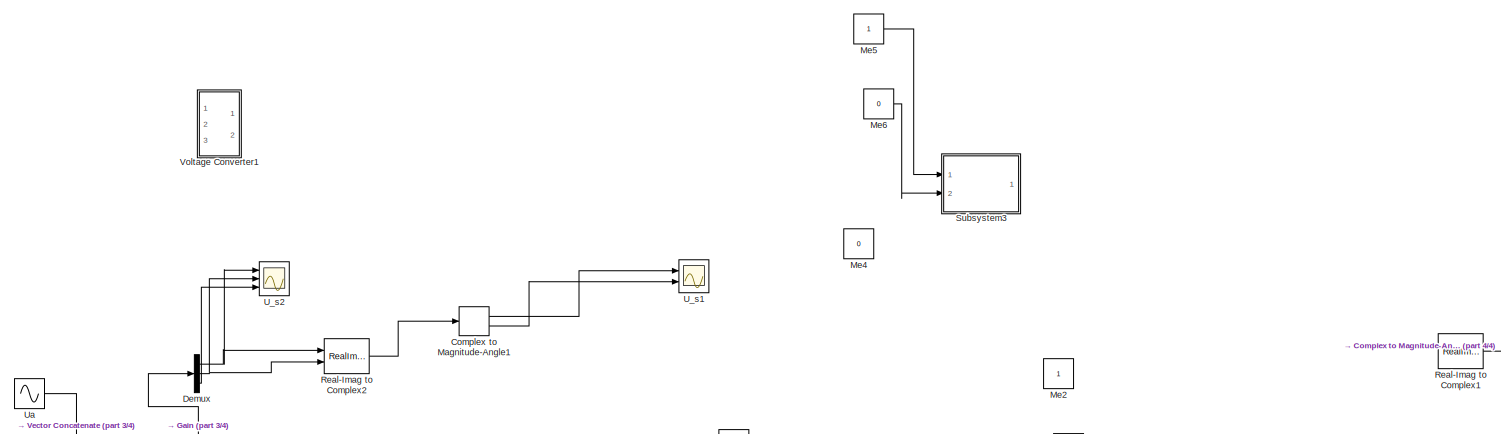
[diagram: root canvas - part 1/4, full width, top band]
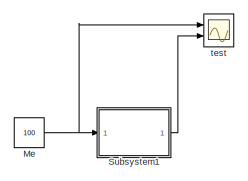
[diagram: root canvas - part 2/4, middle right region]
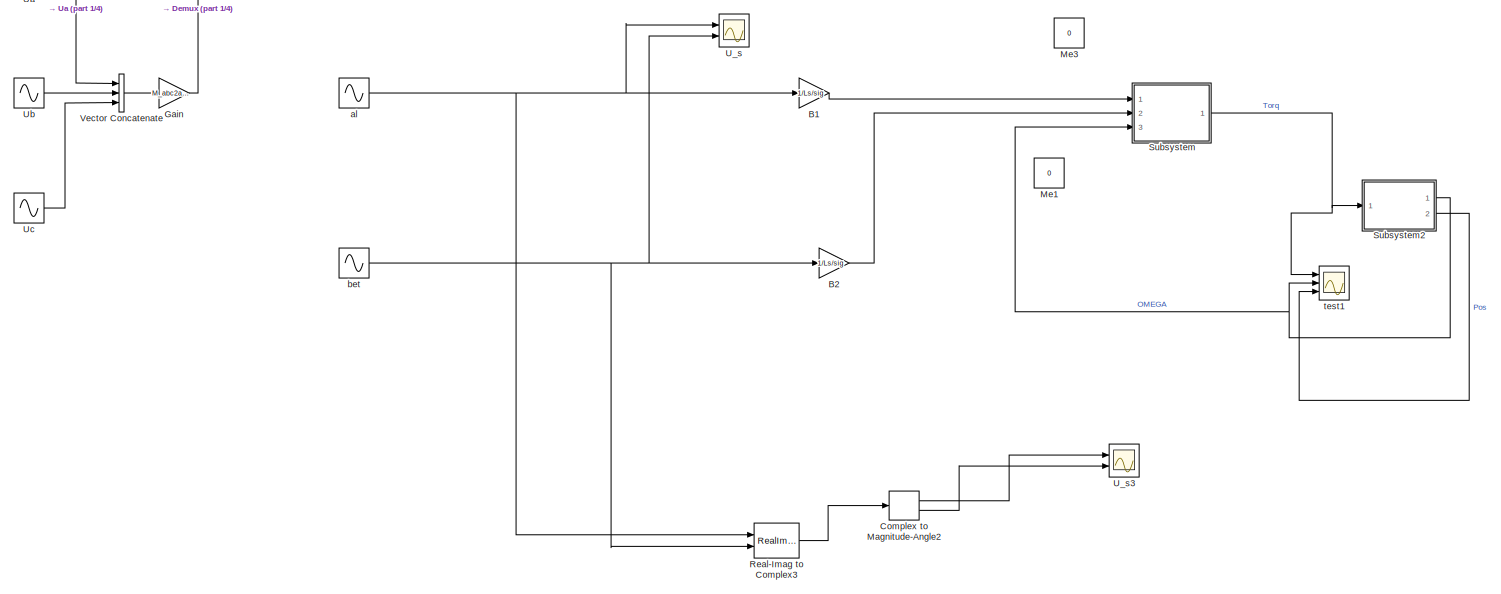
[diagram: root canvas - part 3/4, full width, bottom band]
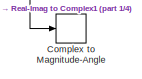
[diagram: root canvas - part 4/4, middle right region]
MODEL slx_2a4fa56e10c3
KIND model
CONFIG AbsTol = auto
CONFIG FixedStep = 0.0001
CONFIG MaxStep = auto
CONFIG MinStep = auto
CONFIG RelTol = 1e-3
CONFIG SampleTimeConstraint = Unconstrained
CONFIG Solver = FixedStepAuto
CONFIG SolverMode = Auto
CONFIG SolverName = FixedStepAuto
CONFIG StartTime = 0.0
CONFIG StopTime = 5
BLOCK [Gain] B1
  Gain = 1/Ls/sig
  Multiplication = Matrix(K*u)
  OutDataTypeStr = Inherit: Inherit via internal rule
  ParamDataTypeStr = Inherit: Inherit via internal rule
  SaturateOnIntegerOverflow = off
BLOCK [Gain] B2
  Gain = 1/Ls/sig
  Multiplication = Matrix(K*u)
  OutDataTypeStr = Inherit: Inherit via internal rule
  ParamDataTypeStr = Inherit: Inherit via internal rule
  SaturateOnIntegerOverflow = off
BLOCK [ComplexToMagnitudeAngle] Complex to Magnitude-Angle
  Ports = [1, 2]
BLOCK [ComplexToMagnitudeAngle] Complex to Magnitude-Angle1
  Ports = [1, 2]
BLOCK [ComplexToMagnitudeAngle] Complex to Magnitude-Angle2
  Ports = [1, 2]
BLOCK [Demux] Demux
  DisplayOption = bar
  Outputs = 3
  Ports = [1, 3]
BLOCK [Gain] Gain
  Gain = M_abc2ab0
  Multiplication = Matrix(K*u)
  OutDataTypeStr = Inherit: Inherit via internal rule
  ParamDataTypeStr = Inherit: Inherit via internal rule
  SaturateOnIntegerOverflow = off
BLOCK [Constant] Me
  Value = 100
BLOCK [Constant] Me1
  Value = 0
BLOCK [Constant] Me2
BLOCK [Constant] Me3
  Value = 0
BLOCK [Constant] Me4
  Value = 0
BLOCK [Constant] Me5
BLOCK [Constant] Me6
  Value = 0
BLOCK [RealImagToComplex] Real-Imag to Complex1
  Ports = [2, 1]
BLOCK [RealImagToComplex] Real-Imag to Complex2
  Ports = [2, 1]
BLOCK [RealImagToComplex] Real-Imag to Complex3
  Ports = [2, 1]
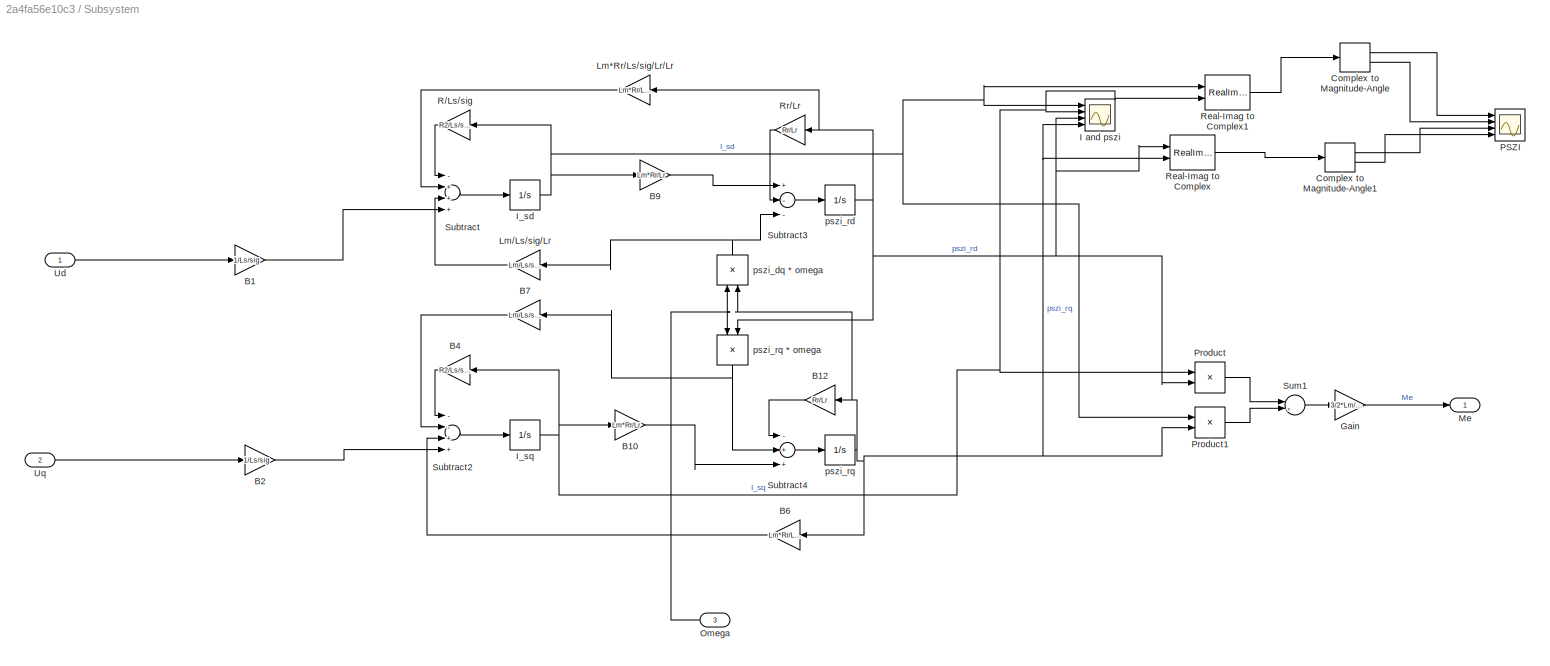
BLOCK [SubSystem] Subsystem
  Ports = [3, 1]
  RequestExecContextInheritance = off
  Variant = off
BLOCK [Gain] Subsystem/B1
  Gain = 1/Ls/sig
  Multiplication = Matrix(K*u)
  OutDataTypeStr = Inherit: Inherit via internal rule
  ParamDataTypeStr = Inherit: Inherit via internal rule
  SaturateOnIntegerOverflow = off
BLOCK [Gain] Subsystem/B10
  Gain = Lm*Rr/Lr
  Multiplication = Matrix(K*u)
  OutDataTypeStr = Inherit: Inherit via internal rule
  ParamDataTypeStr = Inherit: Inherit via internal rule
  SaturateOnIntegerOverflow = off
BLOCK [Gain] Subsystem/B12
  Gain = Rr/Lr
  Multiplication = Matrix(K*u)
  OutDataTypeStr = Inherit: Inherit via internal rule
  ParamDataTypeStr = Inherit: Inherit via internal rule
  SaturateOnIntegerOverflow = off
BLOCK [Gain] Subsystem/B2
  Gain = 1/Ls/sig
  Multiplication = Matrix(K*u)
  OutDataTypeStr = Inherit: Inherit via internal rule
  ParamDataTypeStr = Inherit: Inherit via internal rule
  SaturateOnIntegerOverflow = off
BLOCK [Gain] Subsystem/B4
  Gain = R2/Ls/sig
  Multiplication = Matrix(K*u)
  OutDataTypeStr = Inherit: Inherit via internal rule
  ParamDataTypeStr = Inherit: Inherit via internal rule
  SaturateOnIntegerOverflow = off
BLOCK [Gain] Subsystem/B6
  Gain = Lm*Rr/Ls/sig/Lr/Lr
  Multiplication = Matrix(K*u)
  OutDataTypeStr = Inherit: Inherit via internal rule
  ParamDataTypeStr = Inherit: Inherit via internal rule
  SaturateOnIntegerOverflow = off
BLOCK [Gain] Subsystem/B7
  Gain = Lm/Ls/sig/Lr
  Multiplication = Matrix(K*u)
  OutDataTypeStr = Inherit: Inherit via internal rule
  ParamDataTypeStr = Inherit: Inherit via internal rule
  SaturateOnIntegerOverflow = off
BLOCK [Gain] Subsystem/B9
  Gain = Lm*Rr/Lr
  Multiplication = Matrix(K*u)
  OutDataTypeStr = Inherit: Inherit via internal rule
  ParamDataTypeStr = Inherit: Inherit via internal rule
  SaturateOnIntegerOverflow = off
BLOCK [ComplexToMagnitudeAngle] Subsystem/Complex to Magnitude-Angle
  Ports = [1, 2]
BLOCK [ComplexToMagnitudeAngle] Subsystem/Complex to Magnitude-Angle1
  Ports = [1, 2]
BLOCK [Gain] Subsystem/Gain
  Gain = 3/2*Lm/Lr
  OutDataTypeStr = Inherit: Inherit via internal rule
  ParamDataTypeStr = Inherit: Inherit via internal rule
  SaturateOnIntegerOverflow = off
BLOCK [Scope] Subsystem/I and pszi
  NumInputPorts = 4
  Ports = [4]
  ScopeSpecificationString = Simulink.scopes.TimeScopeBlockCfg('CurrentConfiguration', extmgr.ConfigurationSet(extmgr.Configuration('Core','General UI',true),extmgr.Configuration('Core','Source UI',true),extmgr.Configuration('Sources','WiredSimulink',true),extmgr.Configuration('Visuals','Time Domain',true,'SerializedDisplays',{struct('MinYLimReal','-96.38058','MaxYLimReal','113.50421','YLabelReal','','MinYLimMag','0.00000','M...<+1466ch>
BLOCK [Integrator] Subsystem/I_sd
  Ports = [1, 1]
BLOCK [Integrator] Subsystem/I_sq
  Ports = [1, 1]
BLOCK [Gain] Subsystem/Lm*Rr//Ls//sig//Lr//Lr
  Gain = Lm*Rr/Ls/sig/Lr/Lr
  Multiplication = Matrix(K*u)
  OutDataTypeStr = Inherit: Inherit via internal rule
  ParamDataTypeStr = Inherit: Inherit via internal rule
  SaturateOnIntegerOverflow = off
BLOCK [Gain] Subsystem/Lm//Ls//sig//Lr
  Gain = Lm/Ls/sig/Lr
  Multiplication = Matrix(K*u)
  OutDataTypeStr = Inherit: Inherit via internal rule
  ParamDataTypeStr = Inherit: Inherit via internal rule
  SaturateOnIntegerOverflow = off
BLOCK [Outport] Subsystem/Me
  IconDisplay = Port number
BLOCK [Inport] Subsystem/Omega
  IconDisplay = Port number
  Port = 3
BLOCK [Scope] Subsystem/PSZI
  NumInputPorts = 4
  Ports = [4]
  ScopeSpecificationString = Simulink.scopes.TimeScopeBlockCfg('CurrentConfiguration', extmgr.ConfigurationSet(extmgr.Configuration('Core','General UI',true),extmgr.Configuration('Core','Source UI',true),extmgr.Configuration('Sources','WiredSimulink',true,'DataLoggingVariableName','ScopeData2'),extmgr.Configuration('Visuals','Time Domain',true,'SerializedDisplays',{struct('MinYLimReal','-15.09969','MaxYLimReal','104.48314','Y...<+1622ch>
BLOCK [Product] Subsystem/Product
  InputSameDT = off
  OutDataTypeStr = Inherit: Inherit via internal rule
  Ports = [2, 1]
  RndMeth = Floor
  SaturateOnIntegerOverflow = off
BLOCK [Product] Subsystem/Product1
  InputSameDT = off
  OutDataTypeStr = Inherit: Inherit via internal rule
  Ports = [2, 1]
  RndMeth = Floor
  SaturateOnIntegerOverflow = off
BLOCK [Gain] Subsystem/R//Ls//sig
  Gain = R2/Ls/sig
  Multiplication = Matrix(K*u)
  OutDataTypeStr = Inherit: Inherit via internal rule
  ParamDataTypeStr = Inherit: Inherit via internal rule
  SaturateOnIntegerOverflow = off
BLOCK [RealImagToComplex] Subsystem/Real-Imag to Complex
  Ports = [2, 1]
BLOCK [RealImagToComplex] Subsystem/Real-Imag to Complex1
  Ports = [2, 1]
BLOCK [Gain] Subsystem/Rr//Lr
  Gain = Rr/Lr
  Multiplication = Matrix(K*u)
  OutDataTypeStr = Inherit: Inherit via internal rule
  ParamDataTypeStr = Inherit: Inherit via internal rule
  SaturateOnIntegerOverflow = off
BLOCK [Sum] Subsystem/Subtract
  InputSameDT = off
  Inputs = -+++
  OutDataTypeStr = Inherit: Inherit via internal rule
  Ports = [4, 1]
  SaturateOnIntegerOverflow = off
BLOCK [Sum] Subsystem/Subtract2
  InputSameDT = off
  Inputs = --++
  OutDataTypeStr = Inherit: Inherit via internal rule
  Ports = [4, 1]
  SaturateOnIntegerOverflow = off
BLOCK [Sum] Subsystem/Subtract3
  InputSameDT = off
  Inputs = +--
  OutDataTypeStr = Inherit: Inherit via internal rule
  Ports = [3, 1]
  SaturateOnIntegerOverflow = off
BLOCK [Sum] Subsystem/Subtract4
  InputSameDT = off
  Inputs = -++
  OutDataTypeStr = Inherit: Inherit via internal rule
  Ports = [3, 1]
  SaturateOnIntegerOverflow = off
BLOCK [Sum] Subsystem/Sum1
  IconShape = round
  InputSameDT = off
  Inputs = |+-|
  OutDataTypeStr = Inherit: Inherit via internal rule
  Ports = [2, 1]
  SaturateOnIntegerOverflow = off
BLOCK [Inport] Subsystem/Ud
  IconDisplay = Port number
BLOCK [Inport] Subsystem/Uq
  IconDisplay = Port number
  Port = 2
BLOCK [Product] Subsystem/pszi_dq * omega
  InputSameDT = off
  OutDataTypeStr = Inherit: Inherit via internal rule
  Ports = [2, 1]
  RndMeth = Floor
  SaturateOnIntegerOverflow = off
BLOCK [Integrator] Subsystem/pszi_rd
  Ports = [1, 1]
BLOCK [Integrator] Subsystem/pszi_rq 
  Ports = [1, 1]
BLOCK [Product] Subsystem/pszi_rq * omega
  InputSameDT = off
  OutDataTypeStr = Inherit: Inherit via internal rule
  Ports = [2, 1]
  RndMeth = Floor
  SaturateOnIntegerOverflow = off
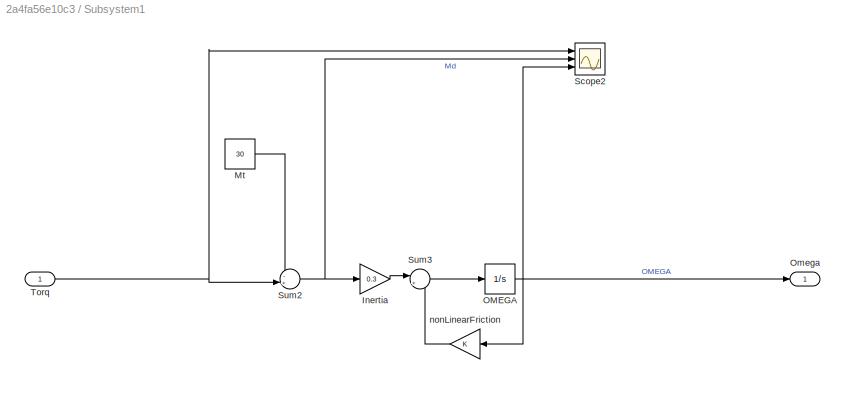
BLOCK [SubSystem] Subsystem1
  Ports = [1, 1]
  RequestExecContextInheritance = off
  Variant = off
BLOCK [Gain] Subsystem1/Inertia
  Gain = 0.3
  OutDataTypeStr = Inherit: Inherit via internal rule
  ParamDataTypeStr = Inherit: Inherit via internal rule
  SaturateOnIntegerOverflow = off
BLOCK [Constant] Subsystem1/Mt
  Value = 30
BLOCK [Integrator] Subsystem1/OMEGA
  Ports = [1, 1]
BLOCK [Outport] Subsystem1/Omega
  IconDisplay = Port number
BLOCK [Scope] Subsystem1/Scope2
  NumInputPorts = 3
  Ports = [3]
  ScopeSpecificationString = Simulink.scopes.TimeScopeBlockCfg('CurrentConfiguration', extmgr.ConfigurationSet(extmgr.Configuration('Core','General UI',true),extmgr.Configuration('Core','Source UI',true),extmgr.Configuration('Sources','WiredSimulink',true,'DataLoggingVariableName','ScopeData2'),extmgr.Configuration('Visuals','Time Domain',true,'SerializedDisplays',{struct('MinYLimReal','90.00000','MaxYLimReal','110.00000','YL...<+2795ch>
BLOCK [Sum] Subsystem1/Sum2
  IconShape = round
  InputSameDT = off
  Inputs = -+|
  OutDataTypeStr = Inherit: Inherit via internal rule
  Ports = [2, 1]
  SaturateOnIntegerOverflow = off
BLOCK [Sum] Subsystem1/Sum3
  IconShape = round
  InputSameDT = off
  Inputs = |+-
  OutDataTypeStr = Inherit: Inherit via internal rule
  Ports = [2, 1]
  SaturateOnIntegerOverflow = off
BLOCK [Inport] Subsystem1/Torq 
  IconDisplay = Port number
BLOCK [Gain] Subsystem1/nonLinearFriction
  OutDataTypeStr = Inherit: Inherit via internal rule
  ParamDataTypeStr = Inherit: Inherit via internal rule
  SaturateOnIntegerOverflow = off
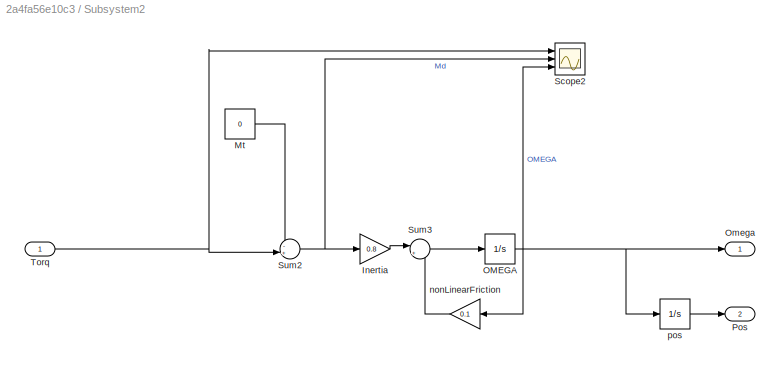
BLOCK [SubSystem] Subsystem2
  Ports = [1, 2]
  RequestExecContextInheritance = off
  Variant = off
BLOCK [Gain] Subsystem2/Inertia
  Gain = 0.8
  OutDataTypeStr = Inherit: Inherit via internal rule
  ParamDataTypeStr = Inherit: Inherit via internal rule
  SaturateOnIntegerOverflow = off
BLOCK [Constant] Subsystem2/Mt
  Value = 0
BLOCK [Integrator] Subsystem2/OMEGA
  Ports = [1, 1]
BLOCK [Outport] Subsystem2/Omega
  IconDisplay = Port number
BLOCK [Outport] Subsystem2/Pos
  IconDisplay = Port number
  Port = 2
BLOCK [Scope] Subsystem2/Scope2
  NumInputPorts = 3
  Ports = [3]
  ScopeSpecificationString = Simulink.scopes.TimeScopeBlockCfg('CurrentConfiguration', extmgr.ConfigurationSet(extmgr.Configuration('Core','General UI',true),extmgr.Configuration('Core','Source UI',true),extmgr.Configuration('Sources','WiredSimulink',true,'DataLoggingVariableName','ScopeData2'),extmgr.Configuration('Visuals','Time Domain',true,'SerializedDisplays',{struct('MinYLimReal','90.00000','MaxYLimReal','110.00000','YL...<+2799ch>
BLOCK [Sum] Subsystem2/Sum2
  IconShape = round
  InputSameDT = off
  Inputs = -+|
  OutDataTypeStr = Inherit: Inherit via internal rule
  Ports = [2, 1]
  SaturateOnIntegerOverflow = off
BLOCK [Sum] Subsystem2/Sum3
  IconShape = round
  InputSameDT = off
  Inputs = |+-
  OutDataTypeStr = Inherit: Inherit via internal rule
  Ports = [2, 1]
  SaturateOnIntegerOverflow = off
BLOCK [Inport] Subsystem2/Torq 
  IconDisplay = Port number
BLOCK [Gain] Subsystem2/nonLinearFriction
  Gain = 0.1
  OutDataTypeStr = Inherit: Inherit via internal rule
  ParamDataTypeStr = Inherit: Inherit via internal rule
  SaturateOnIntegerOverflow = off
BLOCK [Integrator] Subsystem2/pos
  Ports = [1, 1]
  WrapState = on
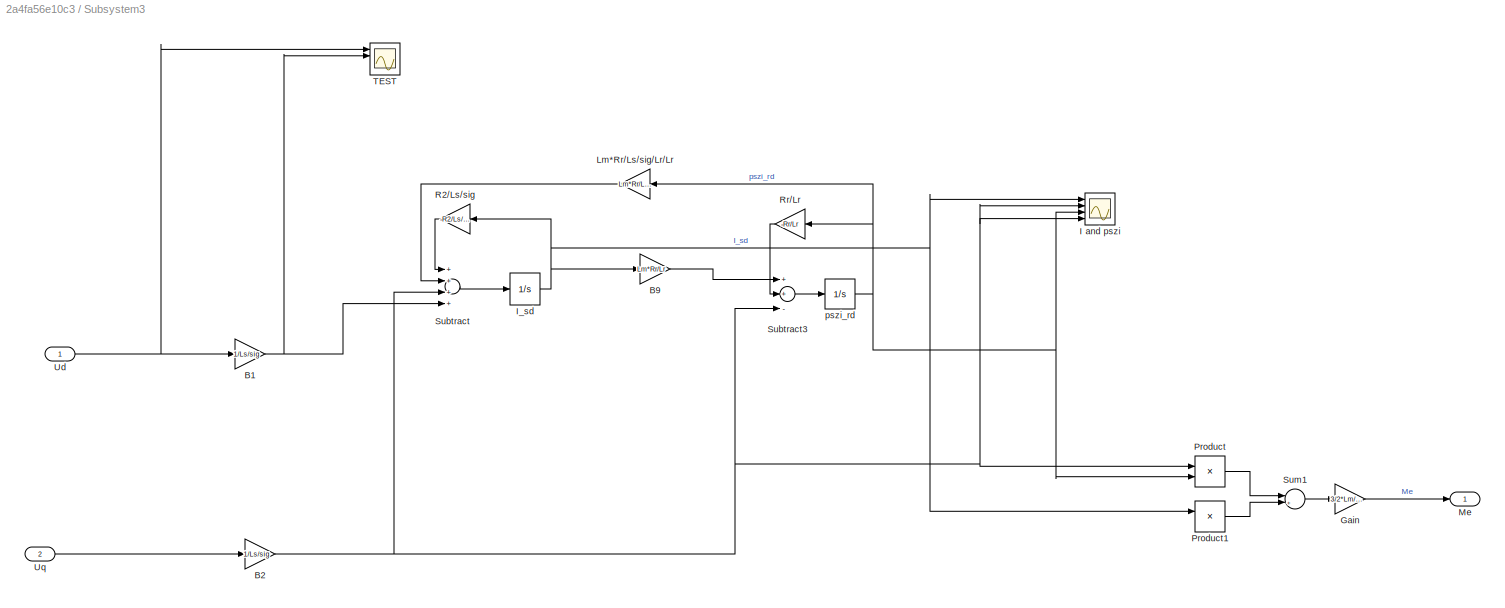
BLOCK [SubSystem] Subsystem3
  Ports = [2, 1]
  RequestExecContextInheritance = off
  Variant = off
BLOCK [Gain] Subsystem3/B1
  Gain = 1/Ls/sig
  Multiplication = Matrix(K*u)
  OutDataTypeStr = Inherit: Inherit via internal rule
  ParamDataTypeStr = Inherit: Inherit via internal rule
  SaturateOnIntegerOverflow = off
BLOCK [Gain] Subsystem3/B2
  Gain = 1/Ls/sig
  Multiplication = Matrix(K*u)
  OutDataTypeStr = Inherit: Inherit via internal rule
  ParamDataTypeStr = Inherit: Inherit via internal rule
  SaturateOnIntegerOverflow = off
BLOCK [Gain] Subsystem3/B9
  Gain = Lm*Rr/Lr
  Multiplication = Matrix(K*u)
  OutDataTypeStr = Inherit: Inherit via internal rule
  ParamDataTypeStr = Inherit: Inherit via internal rule
  SaturateOnIntegerOverflow = off
BLOCK [Gain] Subsystem3/Gain
  Gain = 3/2*Lm/Lr
  OutDataTypeStr = Inherit: Inherit via internal rule
  ParamDataTypeStr = Inherit: Inherit via internal rule
  SaturateOnIntegerOverflow = off
BLOCK [Scope] Subsystem3/I and pszi
  NumInputPorts = 4
  Ports = [4]
  ScopeSpecificationString = Simulink.scopes.TimeScopeBlockCfg('CurrentConfiguration', extmgr.ConfigurationSet(extmgr.Configuration('Core','General UI',true),extmgr.Configuration('Core','Source UI',true),extmgr.Configuration('Sources','WiredSimulink',true),extmgr.Configuration('Visuals','Time Domain',true,'SerializedDisplays',{struct('MinYLimReal','-4.43826','MaxYLimReal','0.49314','YLabelReal','','MinYLimMag','0.00000','MaxY...<+1416ch>
BLOCK [Integrator] Subsystem3/I_sd
  Ports = [1, 1]
BLOCK [Gain] Subsystem3/Lm*Rr//Ls//sig//Lr//Lr
  Gain = Lm*Rr/Ls/sig/Lr/Lr
  Multiplication = Matrix(K*u)
  OutDataTypeStr = Inherit: Inherit via internal rule
  ParamDataTypeStr = Inherit: Inherit via internal rule
  SaturateOnIntegerOverflow = off
BLOCK [Outport] Subsystem3/Me
  IconDisplay = Port number
BLOCK [Product] Subsystem3/Product
  InputSameDT = off
  OutDataTypeStr = Inherit: Inherit via internal rule
  Ports = [2, 1]
  RndMeth = Floor
  SaturateOnIntegerOverflow = off
BLOCK [Product] Subsystem3/Product1
  InputSameDT = off
  OutDataTypeStr = Inherit: Inherit via internal rule
  Ports = [2, 1]
  RndMeth = Floor
  SaturateOnIntegerOverflow = off
BLOCK [Gain] Subsystem3/R2//Ls//sig
  Gain = -R2/Ls/sig
  Multiplication = Matrix(K*u)
  OutDataTypeStr = Inherit: Inherit via internal rule
  ParamDataTypeStr = Inherit: Inherit via internal rule
  SaturateOnIntegerOverflow = off
BLOCK [Gain] Subsystem3/Rr//Lr
  Gain = -Rr/Lr
  Multiplication = Matrix(K*u)
  OutDataTypeStr = Inherit: Inherit via internal rule
  ParamDataTypeStr = Inherit: Inherit via internal rule
  SaturateOnIntegerOverflow = off
BLOCK [Sum] Subsystem3/Subtract
  InputSameDT = off
  Inputs = ++++
  OutDataTypeStr = Inherit: Inherit via internal rule
  Ports = [4, 1]
  SaturateOnIntegerOverflow = off
BLOCK [Sum] Subsystem3/Subtract3
  InputSameDT = off
  Inputs = ++-
  OutDataTypeStr = Inherit: Inherit via internal rule
  Ports = [3, 1]
  SaturateOnIntegerOverflow = off
BLOCK [Sum] Subsystem3/Sum1
  IconShape = round
  InputSameDT = off
  Inputs = |+-|
  OutDataTypeStr = Inherit: Inherit via internal rule
  Ports = [2, 1]
  SaturateOnIntegerOverflow = off
BLOCK [Scope] Subsystem3/TEST
  NumInputPorts = 4
  Ports = [4]
  ScopeSpecificationString = Simulink.scopes.TimeScopeBlockCfg('CurrentConfiguration', extmgr.ConfigurationSet(extmgr.Configuration('Core','General UI',true),extmgr.Configuration('Core','Source UI',true),extmgr.Configuration('Sources','WiredSimulink',true,'DataLoggingVariableName','ScopeData6'),extmgr.Configuration('Visuals','Time Domain',true,'SerializedDisplays',{struct('MinYLimReal','-0.05622','MaxYLimReal','-0.04325','YLa...<+1467ch>
BLOCK [Inport] Subsystem3/Ud
  IconDisplay = Port number
BLOCK [Inport] Subsystem3/Uq
  IconDisplay = Port number
  Port = 2
BLOCK [Integrator] Subsystem3/pszi_rd
  Ports = [1, 1]
BLOCK [Scope] U_s
  NumInputPorts = 2
  Ports = [2]
  ScopeSpecificationString = Simulink.scopes.TimeScopeBlockCfg('CurrentConfiguration', extmgr.ConfigurationSet(extmgr.Configuration('Core','General UI',true),extmgr.Configuration('Core','Source UI',true),extmgr.Configuration('Sources','WiredSimulink',true,'DataLoggingVariableName','ScopeData1'),extmgr.Configuration('Visuals','Time Domain',true,'SerializedDisplays',{struct('MinYLimReal','-99.99999','MaxYLimReal','99.99993','YL...<+1445ch>
BLOCK [Scope] U_s1
  NumInputPorts = 2
  Ports = [2]
  ScopeSpecificationString = Simulink.scopes.TimeScopeBlockCfg('CurrentConfiguration', extmgr.ConfigurationSet(extmgr.Configuration('Core','General UI',true),extmgr.Configuration('Core','Source UI',true),extmgr.Configuration('Sources','WiredSimulink',true,'DataLoggingVariableName','ScopeData3'),extmgr.Configuration('Visuals','Time Domain',true,'SerializedDisplays',{struct('MinYLimReal','-100.00000','MaxYLimReal','100.00000','...<+1535ch>
BLOCK [Scope] U_s2
  NumInputPorts = 3
  Ports = [3]
  ScopeSpecificationString = Simulink.scopes.TimeScopeBlockCfg('CurrentConfiguration', extmgr.ConfigurationSet(extmgr.Configuration('Core','General UI',true),extmgr.Configuration('Core','Source UI',true),extmgr.Configuration('Sources','WiredSimulink',true,'DataLoggingVariableName','ScopeData4'),extmgr.Configuration('Visuals','Time Domain',true,'SerializedDisplays',{struct('MinYLimReal','-99.99999','MaxYLimReal','99.99994','YL...<+1470ch>
BLOCK [Scope] U_s3
  NumInputPorts = 2
  Ports = [2]
  ScopeSpecificationString = Simulink.scopes.TimeScopeBlockCfg('CurrentConfiguration', extmgr.ConfigurationSet(extmgr.Configuration('Core','General UI',true),extmgr.Configuration('Core','Source UI',true),extmgr.Configuration('Sources','WiredSimulink',true,'DataLoggingVariableName','ScopeData5'),extmgr.Configuration('Visuals','Time Domain',true,'SerializedDisplays',{struct('MinYLimReal','-100.00000','MaxYLimReal','100.00000','...<+1510ch>
BLOCK [Sin] Ua
  Amplitude = 80
  Frequency = 314
  Ports = [0, 1]
  SampleTime = 0
BLOCK [Sin] Ub
  Amplitude = 80
  Frequency = 314
  Phase = -2*pi/3
  Ports = [0, 1]
  SampleTime = 0
BLOCK [Sin] Uc
  Amplitude = 80
  Frequency = 314
  Phase = 2*pi/3
  Ports = [0, 1]
  SampleTime = 0
BLOCK [Concatenate] Vector Concatenate
  NumInputs = 3
  Ports = [3, 1]
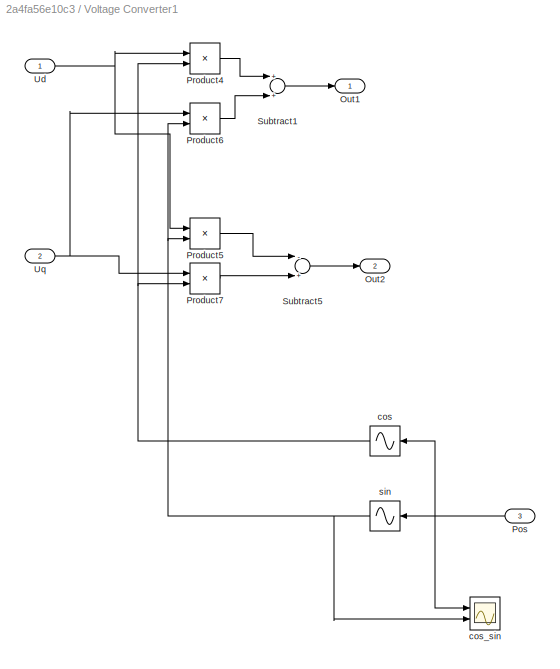
BLOCK [SubSystem] Voltage Converter1
  Ports = [3, 2]
  RequestExecContextInheritance = off
  Variant = off
BLOCK [Outport] Voltage Converter1/Out1
  IconDisplay = Port number
BLOCK [Outport] Voltage Converter1/Out2
  IconDisplay = Port number
  Port = 2
BLOCK [Inport] Voltage Converter1/Pos
  IconDisplay = Port number
  Port = 3
BLOCK [Product] Voltage Converter1/Product4
  InputSameDT = off
  OutDataTypeStr = Inherit: Inherit via internal rule
  Ports = [2, 1]
  RndMeth = Floor
  SaturateOnIntegerOverflow = off
BLOCK [Product] Voltage Converter1/Product5
  InputSameDT = off
  OutDataTypeStr = Inherit: Inherit via internal rule
  Ports = [2, 1]
  RndMeth = Floor
  SaturateOnIntegerOverflow = off
BLOCK [Product] Voltage Converter1/Product6
  InputSameDT = off
  OutDataTypeStr = Inherit: Inherit via internal rule
  Ports = [2, 1]
  RndMeth = Floor
  SaturateOnIntegerOverflow = off
BLOCK [Product] Voltage Converter1/Product7
  InputSameDT = off
  OutDataTypeStr = Inherit: Inherit via internal rule
  Ports = [2, 1]
  RndMeth = Floor
  SaturateOnIntegerOverflow = off
BLOCK [Sum] Voltage Converter1/Subtract1
  InputSameDT = off
  OutDataTypeStr = Inherit: Inherit via internal rule
  Ports = [2, 1]
  SaturateOnIntegerOverflow = off
BLOCK [Sum] Voltage Converter1/Subtract5
  InputSameDT = off
  Inputs = -+
  OutDataTypeStr = Inherit: Inherit via internal rule
  Ports = [2, 1]
  SaturateOnIntegerOverflow = off
BLOCK [Inport] Voltage Converter1/Ud
  IconDisplay = Port number
BLOCK [Inport] Voltage Converter1/Uq
  IconDisplay = Port number
  Port = 2
BLOCK [Sin] Voltage Converter1/cos
  Phase = +pi/2
  Ports = [1, 1]
  SampleTime = 0
  TimeSource = Use external signal
BLOCK [Scope] Voltage Converter1/cos_sin
  NumInputPorts = 2
  Ports = [2]
  ScopeSpecificationString = Simulink.scopes.TimeScopeBlockCfg('CurrentConfiguration', extmgr.ConfigurationSet(extmgr.Configuration('Core','General UI',true),extmgr.Configuration('Core','Source UI',true),extmgr.Configuration('Sources','WiredSimulink',true,'DataLoggingVariableName','ScopeData1'),extmgr.Configuration('Visuals','Time Domain',true,'SerializedDisplays',{struct('MinYLimReal','-0.0753','MaxYLimReal','0.6777','YLabel...<+1448ch>
BLOCK [Sin] Voltage Converter1/sin
  Ports = [1, 1]
  SampleTime = 0
  TimeSource = Use external signal
BLOCK [Sin] al
  Amplitude = 80
  Frequency = 314
  Phase = 1.57
  Ports = [0, 1]
  SampleTime = 0
BLOCK [Sin] bet
  Amplitude = 80
  Frequency = 314
  Ports = [0, 1]
  SampleTime = 0
BLOCK [Scope] test
  NumInputPorts = 2
  Ports = [2]
  ScopeSpecificationString = Simulink.scopes.TimeScopeBlockCfg('CurrentConfiguration', extmgr.ConfigurationSet(extmgr.Configuration('Core','General UI',true),extmgr.Configuration('Core','Source UI',true),extmgr.Configuration('Sources','WiredSimulink',true,'DataLoggingVariableName','ScopeData4'),extmgr.Configuration('Visuals','Time Domain',true,'SerializedDisplays',{struct('MinYLimReal','-12.5','MaxYLimReal','112.5','YLabelRea...<+1407ch>
BLOCK [Scope] test1
  NumInputPorts = 3
  Ports = [3]
  ScopeSpecificationString = Simulink.scopes.TimeScopeBlockCfg('CurrentConfiguration', extmgr.ConfigurationSet(extmgr.Configuration('Core','General UI',true),extmgr.Configuration('Core','Source UI',true),extmgr.Configuration('Sources','WiredSimulink',true,'DataLoggingVariableName','ScopeData5'),extmgr.Configuration('Visuals','Time Domain',true,'SerializedDisplays',{struct('MinYLimReal','-118.22344','MaxYLimReal','336.31284','...<+1469ch>
LINE B1:1 -> Subsystem:1
LINE B2:1 -> Subsystem:2
LINE Complex to Magnitude-Angle1:1 -> U_s1:1
LINE Complex to Magnitude-Angle1:2 -> U_s1:2
LINE Complex to Magnitude-Angle2:1 -> U_s3:1
LINE Complex to Magnitude-Angle2:2 -> U_s3:2
NET Demux:1 -> Real-Imag to Complex2:1, U_s2:1
NET Demux:2 -> Real-Imag to Complex2:2, U_s2:2
LINE Demux:3 -> U_s2:3
LINE Gain:1 -> Demux:1
LINE Me5:1 -> Subsystem3:1
LINE Me6:1 -> Subsystem3:2
NET Me:1 -> Subsystem1:1, test:1
LINE Real-Imag to Complex1:1 -> Complex to Magnitude-Angle:1
LINE Real-Imag to Complex2:1 -> Complex to Magnitude-Angle1:1
LINE Real-Imag to Complex3:1 -> Complex to Magnitude-Angle2:1
LINE Subsystem/B10:1 -> Subsystem/Subtract4:3
LINE Subsystem/B12:1 -> Subsystem/Subtract4:1
LINE Subsystem/B1:1 -> Subsystem/Subtract:4
LINE Subsystem/B2:1 -> Subsystem/Subtract2:4
LINE Subsystem/B4:1 -> Subsystem/Subtract2:1
LINE Subsystem/B6:1 -> Subsystem/Subtract2:3
LINE Subsystem/B7:1 -> Subsystem/Subtract2:2
LINE Subsystem/B9:1 -> Subsystem/Subtract3:1
LINE Subsystem/Complex to Magnitude-Angle1:1 -> Subsystem/PSZI:3
LINE Subsystem/Complex to Magnitude-Angle1:2 -> Subsystem/PSZI:4
LINE Subsystem/Complex to Magnitude-Angle:1 -> Subsystem/PSZI:1
LINE Subsystem/Complex to Magnitude-Angle:2 -> Subsystem/PSZI:2
LINE Subsystem/Gain:1 -> Subsystem/Me:1
NET Subsystem/I_sd:1 -> Subsystem/B9:1, Subsystem/I and pszi:1, Subsystem/Product1:1, Subsystem/R//Ls//sig:1, Subsystem/Real-Imag to Complex1:1
NET Subsystem/I_sq:1 -> Subsystem/B10:1, Subsystem/B4:1, Subsystem/I and pszi:2, Subsystem/Product:1, Subsystem/Real-Imag to Complex1:2
LINE Subsystem/Lm*Rr//Ls//sig//Lr//Lr:1 -> Subsystem/Subtract:2
LINE Subsystem/Lm//Ls//sig//Lr:1 -> Subsystem/Subtract:3
NET Subsystem/Omega:1 -> Subsystem/pszi_dq * omega:1, Subsystem/pszi_rq * omega:1
LINE Subsystem/Product1:1 -> Subsystem/Sum1:2
LINE Subsystem/Product:1 -> Subsystem/Sum1:1
LINE Subsystem/R//Ls//sig:1 -> Subsystem/Subtract:1
LINE Subsystem/Real-Imag to Complex1:1 -> Subsystem/Complex to Magnitude-Angle:1
LINE Subsystem/Real-Imag to Complex:1 -> Subsystem/Complex to Magnitude-Angle1:1
LINE Subsystem/Rr//Lr:1 -> Subsystem/Subtract3:2
LINE Subsystem/Subtract2:1 -> Subsystem/I_sq:1
LINE Subsystem/Subtract3:1 -> Subsystem/pszi_rd:1
LINE Subsystem/Subtract4:1 -> Subsystem/pszi_rq :1
LINE Subsystem/Subtract:1 -> Subsystem/I_sd:1
LINE Subsystem/Sum1:1 -> Subsystem/Gain:1
LINE Subsystem/Ud:1 -> Subsystem/B1:1
LINE Subsystem/Uq:1 -> Subsystem/B2:1
NET Subsystem/pszi_dq * omega:1 -> Subsystem/Lm//Ls//sig//Lr:1, Subsystem/Subtract3:3
NET Subsystem/pszi_rd:1 -> Subsystem/I and pszi:3, Subsystem/Lm*Rr//Ls//sig//Lr//Lr:1, Subsystem/Product:2, Subsystem/Real-Imag to Complex:1, Subsystem/Rr//Lr:1, Subsystem/pszi_rq * omega:2
NET Subsystem/pszi_rq * omega:1 -> Subsystem/B7:1, Subsystem/Subtract4:2
NET Subsystem/pszi_rq :1 -> Subsystem/B12:1, Subsystem/B6:1, Subsystem/I and pszi:4, Subsystem/Product1:2, Subsystem/Real-Imag to Complex:2, Subsystem/pszi_dq * omega:2
LINE Subsystem1/Inertia:1 -> Subsystem1/Sum3:1
LINE Subsystem1/Mt:1 -> Subsystem1/Sum2:1
NET Subsystem1/OMEGA:1 -> Subsystem1/Omega:1, Subsystem1/Scope2:3, Subsystem1/nonLinearFriction:1
NET Subsystem1/Sum2:1 -> Subsystem1/Inertia:1, Subsystem1/Scope2:2
LINE Subsystem1/Sum3:1 -> Subsystem1/OMEGA:1
NET Subsystem1/Torq :1 -> Subsystem1/Scope2:1, Subsystem1/Sum2:2
LINE Subsystem1/nonLinearFriction:1 -> Subsystem1/Sum3:2
LINE Subsystem1:1 -> test:2
LINE Subsystem2/Inertia:1 -> Subsystem2/Sum3:1
LINE Subsystem2/Mt:1 -> Subsystem2/Sum2:1
NET Subsystem2/OMEGA:1 -> Subsystem2/Omega:1, Subsystem2/Scope2:3, Subsystem2/nonLinearFriction:1, Subsystem2/pos:1
NET Subsystem2/Sum2:1 -> Subsystem2/Inertia:1, Subsystem2/Scope2:2
LINE Subsystem2/Sum3:1 -> Subsystem2/OMEGA:1
NET Subsystem2/Torq :1 -> Subsystem2/Scope2:1, Subsystem2/Sum2:2
LINE Subsystem2/nonLinearFriction:1 -> Subsystem2/Sum3:2
LINE Subsystem2/pos:1 -> Subsystem2/Pos:1
NET Subsystem2:1 -> Subsystem:3, test1:2
LINE Subsystem2:2 -> test1:3
NET Subsystem3/B1:1 -> Subsystem3/Subtract:4, Subsystem3/TEST:2
NET Subsystem3/B2:1 -> Subsystem3/I and pszi:2, Subsystem3/I and pszi:4, Subsystem3/Product:1, Subsystem3/Subtract3:3, Subsystem3/Subtract:3
LINE Subsystem3/B9:1 -> Subsystem3/Subtract3:1
LINE Subsystem3/Gain:1 -> Subsystem3/Me:1
NET Subsystem3/I_sd:1 -> Subsystem3/B9:1, Subsystem3/I and pszi:1, Subsystem3/Product1:1, Subsystem3/R2//Ls//sig:1
LINE Subsystem3/Lm*Rr//Ls//sig//Lr//Lr:1 -> Subsystem3/Subtract:2
LINE Subsystem3/Product1:1 -> Subsystem3/Sum1:2
LINE Subsystem3/Product:1 -> Subsystem3/Sum1:1
LINE Subsystem3/R2//Ls//sig:1 -> Subsystem3/Subtract:1
LINE Subsystem3/Rr//Lr:1 -> Subsystem3/Subtract3:2
LINE Subsystem3/Subtract3:1 -> Subsystem3/pszi_rd:1
LINE Subsystem3/Subtract:1 -> Subsystem3/I_sd:1
LINE Subsystem3/Sum1:1 -> Subsystem3/Gain:1
NET Subsystem3/Ud:1 -> Subsystem3/B1:1, Subsystem3/TEST:1
LINE Subsystem3/Uq:1 -> Subsystem3/B2:1
NET Subsystem3/pszi_rd:1 -> Subsystem3/I and pszi:3, Subsystem3/Lm*Rr//Ls//sig//Lr//Lr:1, Subsystem3/Product:2, Subsystem3/Rr//Lr:1
NET Subsystem:1 -> Subsystem2:1, test1:1
LINE Ua:1 -> Vector Concatenate:1
LINE Ub:1 -> Vector Concatenate:2
LINE Uc:1 -> Vector Concatenate:3
LINE Vector Concatenate:1 -> Gain:1
NET Voltage Converter1/Pos:1 -> Voltage Converter1/cos:1, Voltage Converter1/cos_sin:1, Voltage Converter1/sin:1
LINE Voltage Converter1/Product4:1 -> Voltage Converter1/Subtract1:1
LINE Voltage Converter1/Product5:1 -> Voltage Converter1/Subtract5:1
LINE Voltage Converter1/Product6:1 -> Voltage Converter1/Subtract1:2
LINE Voltage Converter1/Product7:1 -> Voltage Converter1/Subtract5:2
LINE Voltage Converter1/Subtract1:1 -> Voltage Converter1/Out1:1
LINE Voltage Converter1/Subtract5:1 -> Voltage Converter1/Out2:1
NET Voltage Converter1/Ud:1 -> Voltage Converter1/Product4:1, Voltage Converter1/Product5:1
NET Voltage Converter1/Uq:1 -> Voltage Converter1/Product6:1, Voltage Converter1/Product7:1
NET Voltage Converter1/cos:1 -> Voltage Converter1/Product4:2, Voltage Converter1/Product7:2
NET Voltage Converter1/sin:1 -> Voltage Converter1/Product5:2, Voltage Converter1/Product6:2, Voltage Converter1/cos_sin:2
NET al:1 -> B1:1, Real-Imag to Complex3:1, U_s:1
NET bet:1 -> B2:1, Real-Imag to Complex3:2, U_s:2
note: NET lines group one-source signal fan-out (src -> all destinations, sorted); 1:1 wires keep LINE
